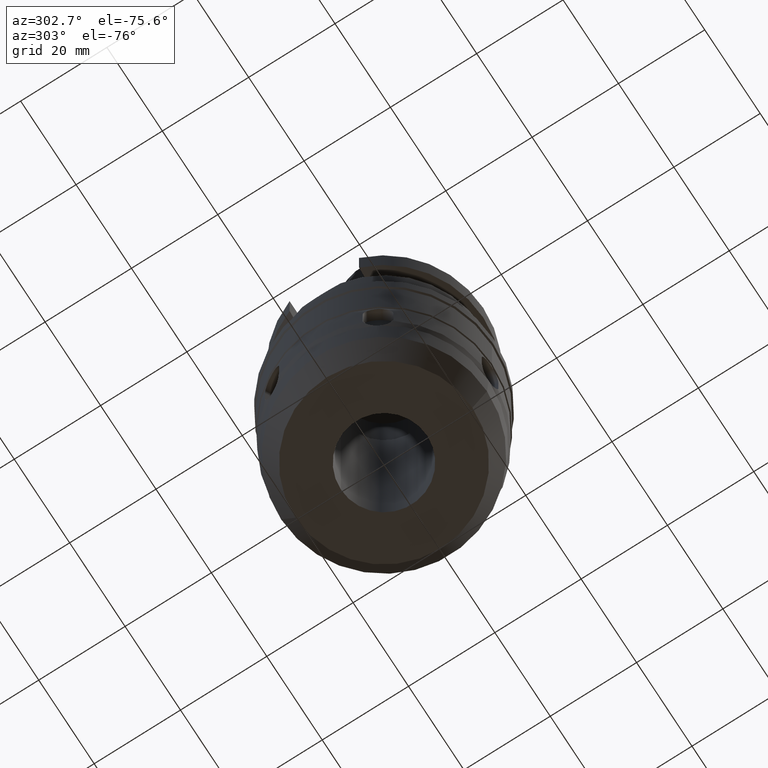
[diagram: clean part render]
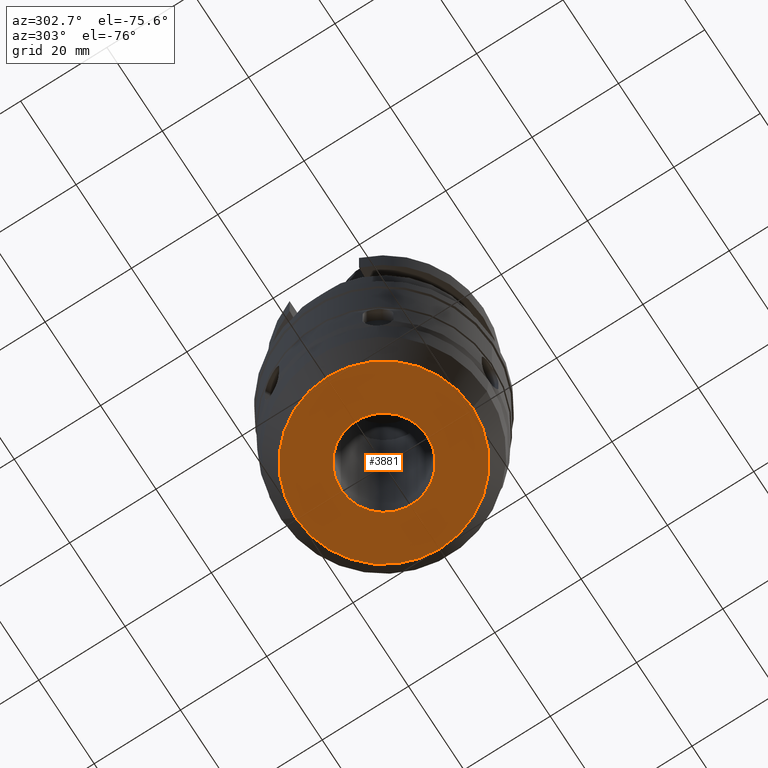
[diagram: same view with one face highlighted and labeled with its STEP entity id]
A machine part, auxiliary view. The second image highlights one B-rep face of the part: STEP entity #3881.
In plain terms, the highlighted planar face has unit normal (0, 0, -1).
Its self-contained STEP definition (entity closure, byte-faithful):
#1905=CARTESIAN_POINT('',(0.E0,0.E0,-7.5E1));
#1906=DIRECTION('',(0.E0,0.E0,1.E0));
#1907=DIRECTION('',(0.E0,-1.E0,0.E0));
#1908=AXIS2_PLACEMENT_3D('',#1905,#1906,#1907);
#1913=CARTESIAN_POINT('',(0.E0,0.E0,-7.5E1));
#1914=DIRECTION('',(0.E0,0.E0,1.E0));
#1915=DIRECTION('',(0.E0,1.E0,0.E0));
#1916=AXIS2_PLACEMENT_3D('',#1913,#1914,#1915);
#1921=CARTESIAN_POINT('',(0.E0,0.E0,-7.5E1));
#1922=DIRECTION('',(0.E0,0.E0,-1.E0));
#1923=DIRECTION('',(0.E0,-1.E0,0.E0));
#1924=AXIS2_PLACEMENT_3D('',#1921,#1922,#1923);
#1929=CARTESIAN_POINT('',(0.E0,0.E0,-7.5E1));
#1930=DIRECTION('',(0.E0,0.E0,-1.E0));
#1931=DIRECTION('',(0.E0,1.E0,0.E0));
#1932=AXIS2_PLACEMENT_3D('',#1929,#1930,#1931);
#2349=CARTESIAN_POINT('',(0.E0,1.E1,-7.5E1));
#2350=VERTEX_POINT('',#2349);
#2351=CARTESIAN_POINT('',(0.E0,-1.E1,-7.5E1));
#2352=VERTEX_POINT('',#2351);
#2353=CARTESIAN_POINT('',(0.E0,-2.05E1,-7.5E1));
#2354=CARTESIAN_POINT('',(0.E0,2.05E1,-7.5E1));
#2355=VERTEX_POINT('',#2353);
#2356=VERTEX_POINT('',#2354);
#3866=CARTESIAN_POINT('',(0.E0,0.E0,-7.5E1));
#3867=DIRECTION('',(0.E0,0.E0,-1.E0));
#3868=DIRECTION('',(0.E0,-1.E0,0.E0));
#3869=AXIS2_PLACEMENT_3D('',#3866,#3867,#3868);
#3870=PLANE('',#3869);
#3871=ORIENTED_EDGE('',*,*,#3859,.T.);
#3872=ORIENTED_EDGE('',*,*,#3848,.T.);
#3873=EDGE_LOOP('',(#3871,#3872));
#3874=FACE_OUTER_BOUND('',#3873,.F.);
#3876=ORIENTED_EDGE('',*,*,#3875,.T.);
#3878=ORIENTED_EDGE('',*,*,#3877,.T.);
#3879=EDGE_LOOP('',(#3876,#3878));
#3880=FACE_BOUND('',#3879,.F.);
#1909=CIRCLE('',#1908,2.05E1);
#1917=CIRCLE('',#1916,2.05E1);
#1925=CIRCLE('',#1924,1.E1);
#1933=CIRCLE('',#1932,1.E1);
#3848=EDGE_CURVE('',#2356,#2355,#1917,.T.);
#3859=EDGE_CURVE('',#2355,#2356,#1909,.T.);
#3875=EDGE_CURVE('',#2352,#2350,#1925,.T.);
#3877=EDGE_CURVE('',#2350,#2352,#1933,.T.);
#3881=ADVANCED_FACE('',(#3874,#3880),#3870,.T.);